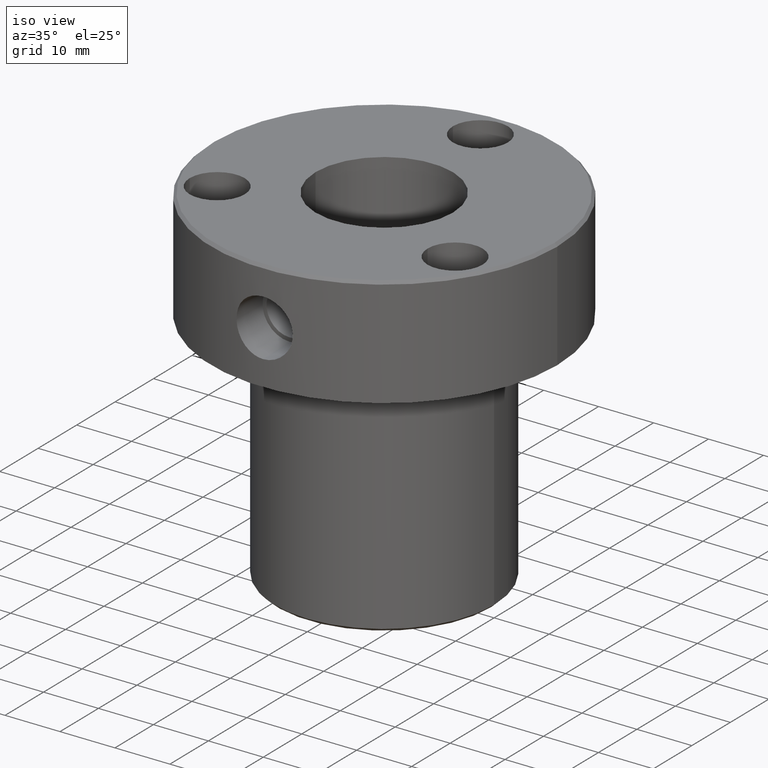
[diagram: clean part render]
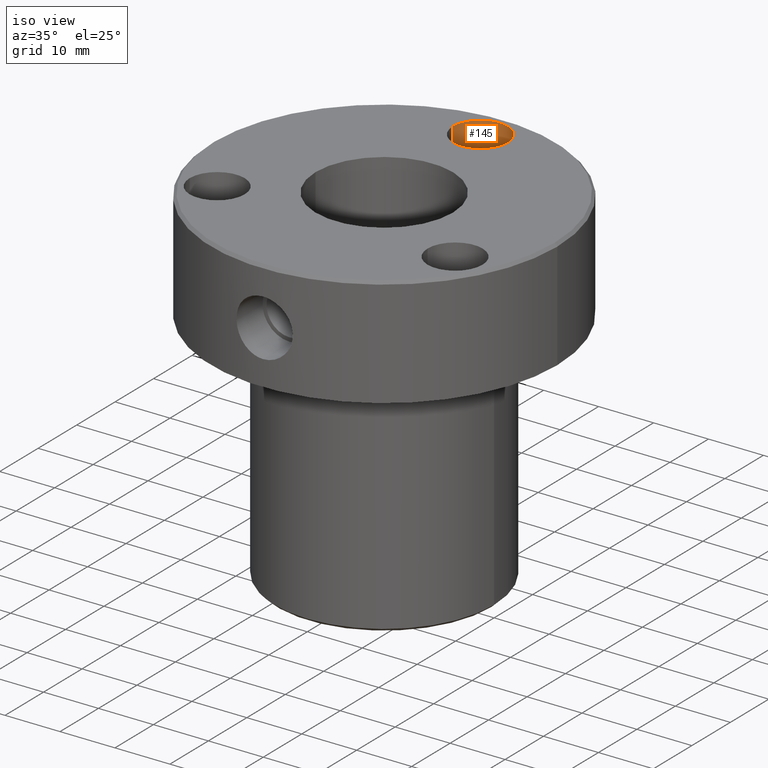
[diagram: same view with one face highlighted and labeled with its STEP entity id]
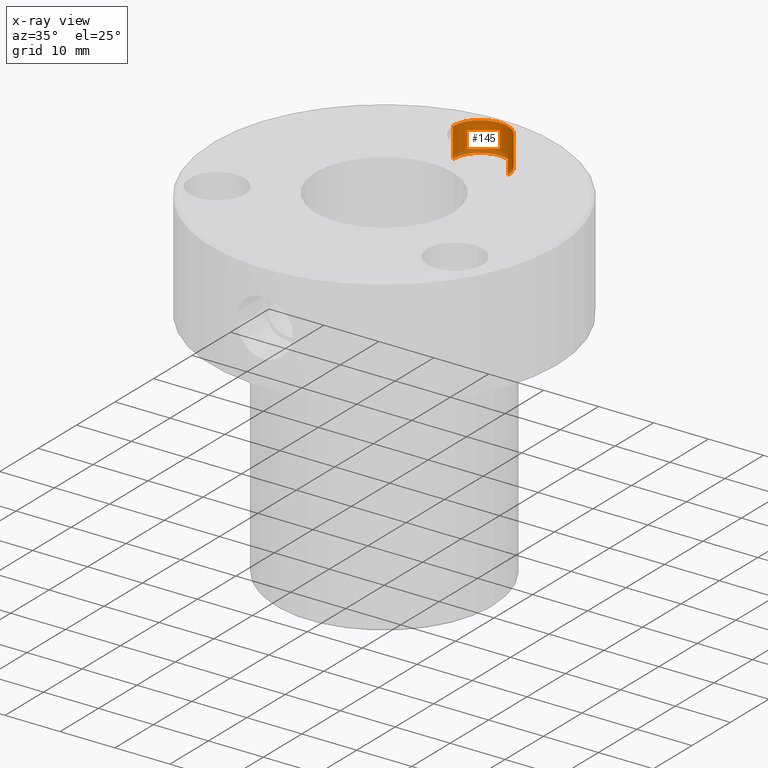
[diagram: x-ray of the same camera — body ghosted, the highlighted face saturated]
A machine part, iso view. The second image highlights one B-rep face of the part: STEP entity #145.
The next image is the same camera in x-ray: the body ghosted, the highlighted face saturated — about 11% of this face is hidden behind the body in this view.
In plain terms, the highlighted cylindrical surface (edge-blend (fillet) strip) has radius 5 mm, axis along (-0, -0, 1).
Its self-contained STEP definition (entity closure, byte-faithful):
#73 = VERTEX_POINT ( 'NONE', #920 ) ;
#77 = DIRECTION ( 'NONE',  ( -0.000000000000000000, -0.000000000000000000, 1.000000000000000000 ) ) ;
#95 = LINE ( 'NONE', #481, #208 ) ;
#101 = DIRECTION ( 'NONE',  ( -0.000000000000000000, -0.000000000000000000, 1.000000000000000000 ) ) ;
#117 = ORIENTED_EDGE ( 'NONE', *, *, #1170, .T. ) ;
#126 = CIRCLE ( 'NONE', #683, 5.000000000000000888 ) ;
#145 = ADVANCED_FACE ( 'NONE', ( #376 ), #487, .F. ) ;
#159 = EDGE_CURVE ( 'NONE', #834, #73, #95, .T. ) ;
#165 = LINE ( 'NONE', #1039, #308 ) ;
#172 = CARTESIAN_POINT ( 'NONE',  ( 0.000000000000000000, 25.00000000000001066, 0.000000000000000000 ) ) ;
#177 = ORIENTED_EDGE ( 'NONE', *, *, #1119, .F. ) ;
#179 = CARTESIAN_POINT ( 'NONE',  ( 4.999999999999999112, 25.00000000000001066, -5.400000000000000355 ) ) ;
#208 = VECTOR ( 'NONE', #215, 1000.000000000000000 ) ;
#215 = DIRECTION ( 'NONE',  ( -0.000000000000000000, -0.000000000000000000, 1.000000000000000000 ) ) ;
#218 = ORIENTED_EDGE ( 'NONE', *, *, #159, .T. ) ;
#254 = CARTESIAN_POINT ( 'NONE',  ( -5.000000000000000888, 25.00000000000001066, 0.000000000000000000 ) ) ;
#308 = VECTOR ( 'NONE', #928, 1000.000000000000000 ) ;
#376 = FACE_OUTER_BOUND ( 'NONE', #1247, .T. ) ;
#388 = EDGE_CURVE ( 'NONE', #834, #1234, #1054, .T. ) ;
#390 = DIRECTION ( 'NONE',  ( 1.000000000000000000, 0.000000000000000000, 0.000000000000000000 ) ) ;
#481 = CARTESIAN_POINT ( 'NONE',  ( 5.000000000000000000, 25.00000000000001066, 0.000000000000000000 ) ) ;
#487 = CYLINDRICAL_SURFACE ( 'NONE', #971, 5.000000000000000000 ) ;
#494 = CARTESIAN_POINT ( 'NONE',  ( -4.999999999999999112, 25.00000000000001066, -5.400000000000000355 ) ) ;
#558 = ORIENTED_EDGE ( 'NONE', *, *, #388, .F. ) ;
#683 = AXIS2_PLACEMENT_3D ( 'NONE', #172, #77, #1003 ) ;
#766 = DIRECTION ( 'NONE',  ( 1.000000000000000000, 0.000000000000000000, 0.000000000000000000 ) ) ;
#834 = VERTEX_POINT ( 'NONE', #179 ) ;
#912 = VERTEX_POINT ( 'NONE', #254 ) ;
#920 = CARTESIAN_POINT ( 'NONE',  ( 5.000000000000000888, 25.00000000000001066, 0.000000000000000000 ) ) ;
#928 = DIRECTION ( 'NONE',  ( -0.000000000000000000, -0.000000000000000000, 1.000000000000000000 ) ) ;
#950 = CARTESIAN_POINT ( 'NONE',  ( 0.000000000000000000, 25.00000000000001066, -5.400000000000000355 ) ) ;
#971 = AXIS2_PLACEMENT_3D ( 'NONE', #1159, #1175, #766 ) ;
#1003 = DIRECTION ( 'NONE',  ( 1.000000000000000000, 0.000000000000000000, 0.000000000000000000 ) ) ;
#1039 = CARTESIAN_POINT ( 'NONE',  ( -5.000000000000000000, 25.00000000000001066, 0.000000000000000000 ) ) ;
#1054 = CIRCLE ( 'NONE', #1114, 4.999999999999999112 ) ;
#1114 = AXIS2_PLACEMENT_3D ( 'NONE', #950, #101, #390 ) ;
#1119 = EDGE_CURVE ( 'NONE', #1234, #912, #165, .T. ) ;
#1159 = CARTESIAN_POINT ( 'NONE',  ( 0.000000000000000000, 25.00000000000001066, 0.000000000000000000 ) ) ;
#1170 = EDGE_CURVE ( 'NONE', #73, #912, #126, .T. ) ;
#1175 = DIRECTION ( 'NONE',  ( -0.000000000000000000, -0.000000000000000000, 1.000000000000000000 ) ) ;
#1234 = VERTEX_POINT ( 'NONE', #494 ) ;
#1247 = EDGE_LOOP ( 'NONE', ( #177, #558, #218, #117 ) ) ;